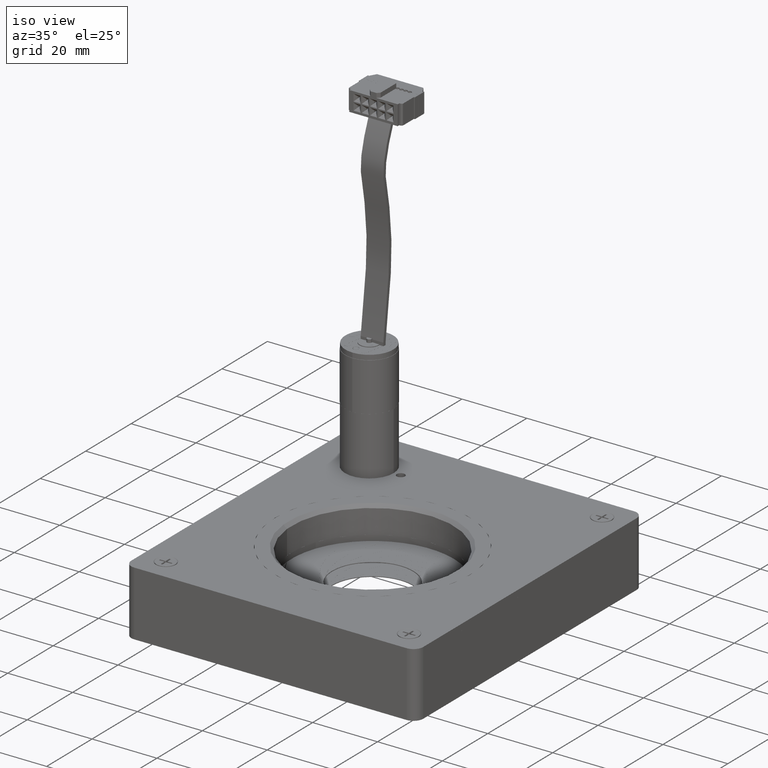
[diagram: clean part render]
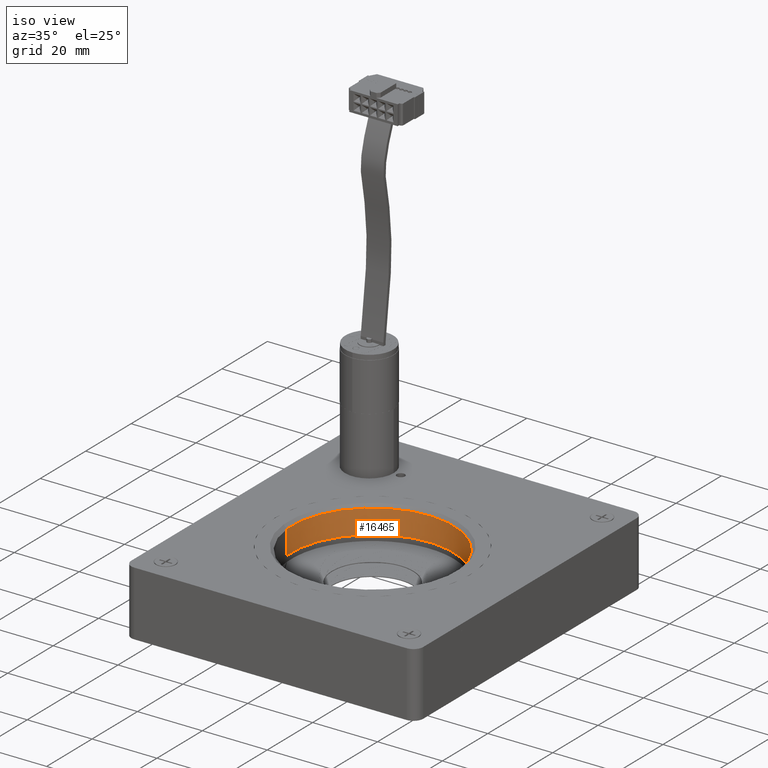
[diagram: same view with one face highlighted and labeled with its STEP entity id]
A machine part, iso view. The second image highlights one B-rep face of the part: STEP entity #16465.
In plain terms, the highlighted cylindrical surface (partial cylindrical patch) has radius 25 mm, axis along (-0, 0, 1).
Its self-contained STEP definition (entity closure, byte-faithful):
#679 = EDGE_CURVE ( 'NONE', #24866, #48756, #3367, .T. ) ;
#1594 = EDGE_LOOP ( 'NONE', ( #19787, #4330, #35537, #17373 ) ) ;
#3367 = CIRCLE ( 'NONE', #21572, 25.00000000000008500 ) ;
#4330 = ORIENTED_EDGE ( 'NONE', *, *, #679, .T. ) ;
#4640 = VERTEX_POINT ( 'NONE', #34908 ) ;
#5137 = CARTESIAN_POINT ( 'NONE',  ( 8.367967116201942300E-015, -4.999999999999984000, -6.400000000000002100 ) ) ;
#7433 = FACE_OUTER_BOUND ( 'NONE', #1594, .T. ) ;
#8917 = CIRCLE ( 'NONE', #24029, 25.00000000000008500 ) ;
#9801 = CARTESIAN_POINT ( 'NONE',  ( -24.90603268208654000, -7.165533661441609900, -6.400000000000003000 ) ) ;
#16465 = ADVANCED_FACE ( 'NONE', ( #7433 ), #44039, .F. ) ;
#17373 = ORIENTED_EDGE ( 'NONE', *, *, #44708, .T. ) ;
#18161 = EDGE_CURVE ( 'NONE', #24866, #33912, #26979, .T. ) ;
#18558 = DIRECTION ( 'NONE',  ( -3.525720875602199400E-017, 8.464410018028424500E-018, 1.000000000000000000 ) ) ;
#19787 = ORIENTED_EDGE ( 'NONE', *, *, #18161, .F. ) ;
#19904 = DIRECTION ( 'NONE',  ( 3.525720875602199400E-017, -8.464410018028424500E-018, -1.000000000000000000 ) ) ;
#21572 = AXIS2_PLACEMENT_3D ( 'NONE', #32057, #19904, #52710 ) ;
#21777 = DIRECTION ( 'NONE',  ( -3.525720875602199400E-017, 8.464410018028424500E-018, 1.000000000000000000 ) ) ;
#22225 = CARTESIAN_POINT ( 'NONE',  ( 8.118076016902487500E-015, -4.999999999999984000, 0.9999999999999870100 ) ) ;
#22509 = LINE ( 'NONE', #29792, #34044 ) ;
#24029 = AXIS2_PLACEMENT_3D ( 'NONE', #22225, #26326, #34541 ) ;
#24766 = CARTESIAN_POINT ( 'NONE',  ( -24.90603268208654000, -7.165533661441609900, 0.9999999999999861200 ) ) ;
#24866 = VERTEX_POINT ( 'NONE', #9801 ) ;
#24868 = CARTESIAN_POINT ( 'NONE',  ( -24.90603268208662500, -7.165533661441617900, -6.400000000000003000 ) ) ;
#26326 = DIRECTION ( 'NONE',  ( -3.525720875602199400E-017, 8.464410018028424500E-018, 1.000000000000000000 ) ) ;
#26979 = LINE ( 'NONE', #24868, #51363 ) ;
#28625 = AXIS2_PLACEMENT_3D ( 'NONE', #5137, #45851, #46032 ) ;
#29792 = CARTESIAN_POINT ( 'NONE',  ( 24.90603268208663900, -2.834466338558346600, -6.400000000000001200 ) ) ;
#30408 = CARTESIAN_POINT ( 'NONE',  ( 24.90603268208655400, -2.834466338558354200, -6.400000000000001200 ) ) ;
#31149 = EDGE_CURVE ( 'NONE', #48756, #4640, #22509, .T. ) ;
#32057 = CARTESIAN_POINT ( 'NONE',  ( 8.367967116201942300E-015, -4.999999999999984000, -6.400000000000002100 ) ) ;
#33912 = VERTEX_POINT ( 'NONE', #24766 ) ;
#34044 = VECTOR ( 'NONE', #21777, 1000.000000000000000 ) ;
#34541 = DIRECTION ( 'NONE',  ( 0.9962413072834619400, 0.08662134645766518500, 4.336808689942002900E-017 ) ) ;
#34908 = CARTESIAN_POINT ( 'NONE',  ( 24.90603268208663900, -2.834466338558346600, 0.9999999999999881200 ) ) ;
#35537 = ORIENTED_EDGE ( 'NONE', *, *, #31149, .T. ) ;
#44039 = CYLINDRICAL_SURFACE ( 'NONE', #28625, 25.00000000000008500 ) ;
#44708 = EDGE_CURVE ( 'NONE', #4640, #33912, #8917, .T. ) ;
#45851 = DIRECTION ( 'NONE',  ( -3.525720875602199400E-017, 8.464410018028424500E-018, 1.000000000000000000 ) ) ;
#46032 = DIRECTION ( 'NONE',  ( 0.9962413072834619400, 0.08662134645766518500, 3.469446951953602500E-017 ) ) ;
#48756 = VERTEX_POINT ( 'NONE', #30408 ) ;
#51363 = VECTOR ( 'NONE', #18558, 1000.000000000000000 ) ;
#52710 = DIRECTION ( 'NONE',  ( -0.9962413072834619400, -0.08662134645766517100, -3.469446951953602500E-017 ) ) ;